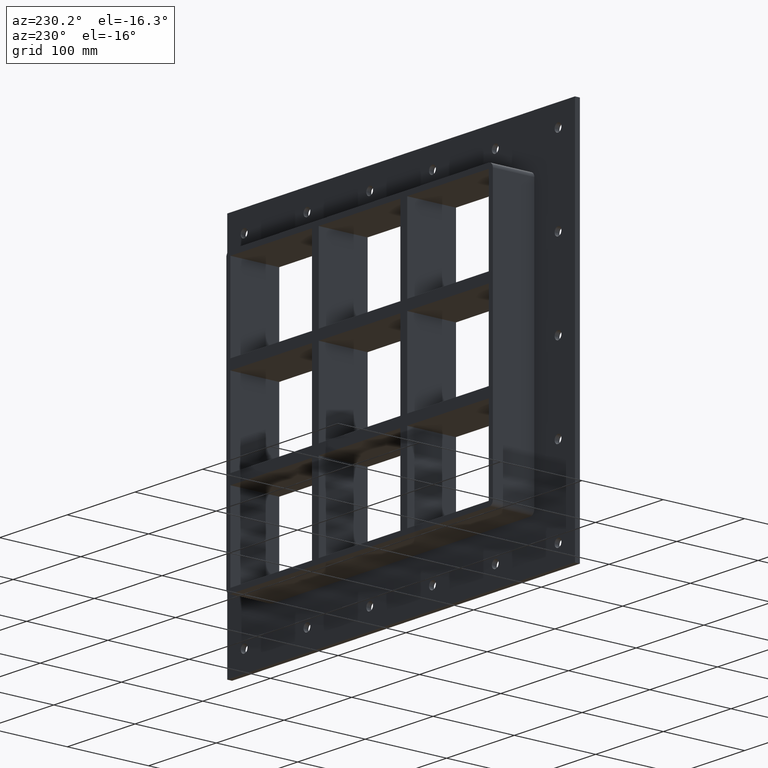
[diagram: clean part render]
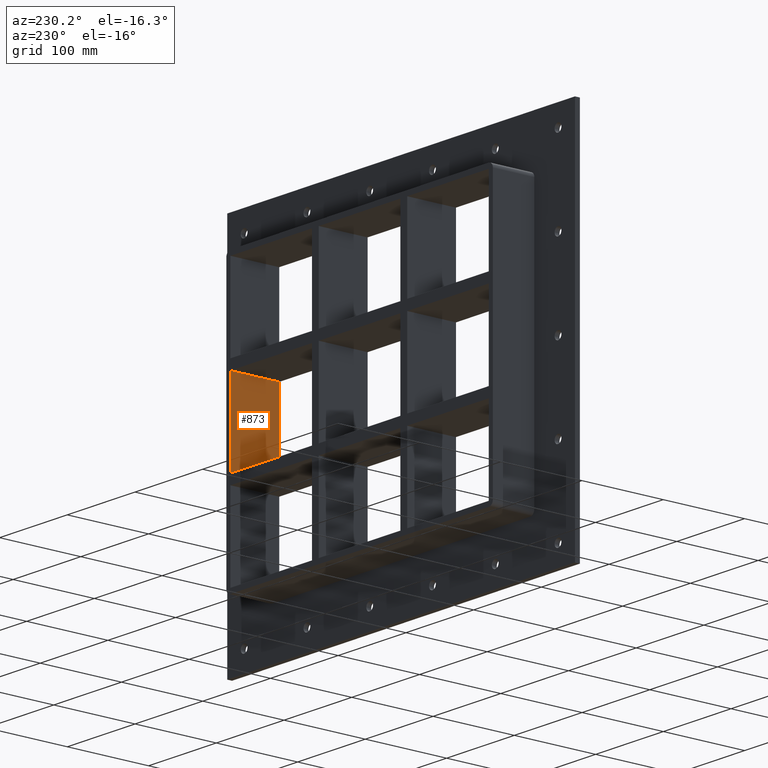
[diagram: same view with one face highlighted and labeled with its STEP entity id]
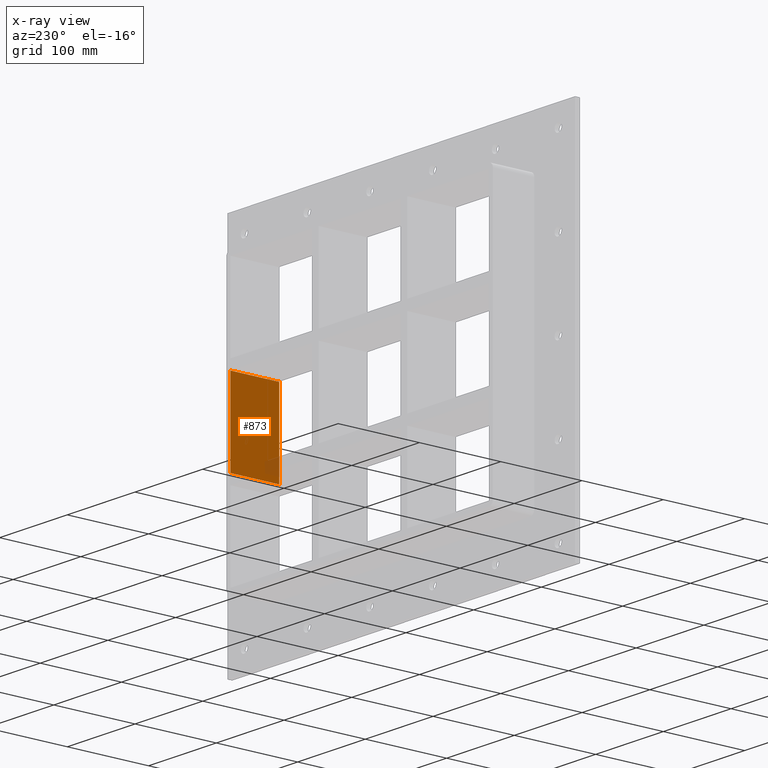
[diagram: x-ray of the same camera — body ghosted, the highlighted face saturated]
A machine part, auxiliary view. The second image highlights one B-rep face of the part: STEP entity #873.
The next image is the same camera in x-ray: the body ghosted, the highlighted face saturated — about 5% of this face is hidden behind the body in this view.
In plain terms, the highlighted planar face has unit normal (1, 0, 0).
Its self-contained STEP definition (entity closure, byte-faithful):
#627=CARTESIAN_POINT('',(190.74999999999821,57.0,50.499999999990671));
#628=VERTEX_POINT('',#627);
#635=CARTESIAN_POINT('',(190.74999999999818,-3.0,50.499999999990671));
#636=VERTEX_POINT('',#635);
#637=CARTESIAN_POINT('',(190.75000000000011,-3.0,50.499999999990663));
#638=DIRECTION('',(0.0,1.0,0.0));
#639=VECTOR('',#638,60.000000000000007);
#640=LINE('',#637,#639);
#641=EDGE_CURVE('',#636,#628,#640,.T.);
#843=CARTESIAN_POINT('',(190.75000000000011,0.0,163.50000000000006));
#844=DIRECTION('',(1.0,0.0,0.0));
#845=DIRECTION('',(0.0,0.0,-1.0));
#846=AXIS2_PLACEMENT_3D('',#843,#844,#845);
#847=PLANE('',#846);
#848=ORIENTED_EDGE('',*,*,#641,.T.);
#849=CARTESIAN_POINT('',(190.75,57.0,-50.500000000000114));
#850=VERTEX_POINT('',#849);
#851=CARTESIAN_POINT('',(190.75000000000011,57.0,-50.500000000000114));
#852=DIRECTION('',(0.0,0.0,1.0));
#853=VECTOR('',#852,100.99999999999079);
#854=LINE('',#851,#853);
#855=EDGE_CURVE('',#850,#628,#854,.T.);
#856=ORIENTED_EDGE('',*,*,#855,.F.);
#857=CARTESIAN_POINT('',(190.75,-3.0,-50.500000000000114));
#858=VERTEX_POINT('',#857);
#859=CARTESIAN_POINT('',(190.75000000000011,57.000000000000007,-50.500000000000114));
#860=DIRECTION('',(0.0,-1.0,0.0));
#861=VECTOR('',#860,60.000000000000007);
#862=LINE('',#859,#861);
#863=EDGE_CURVE('',#850,#858,#862,.T.);
#864=ORIENTED_EDGE('',*,*,#863,.T.);
#865=CARTESIAN_POINT('',(190.75000000000011,-3.0,50.499999999990678));
#866=DIRECTION('',(0.0,0.0,-1.0));
#867=VECTOR('',#866,100.99999999999079);
#868=LINE('',#865,#867);
#869=EDGE_CURVE('',#636,#858,#868,.T.);
#870=ORIENTED_EDGE('',*,*,#869,.F.);
#871=EDGE_LOOP('',(#848,#856,#864,#870));
#872=FACE_OUTER_BOUND('',#871,.T.);
#873=ADVANCED_FACE('',(#872),#847,.F.);